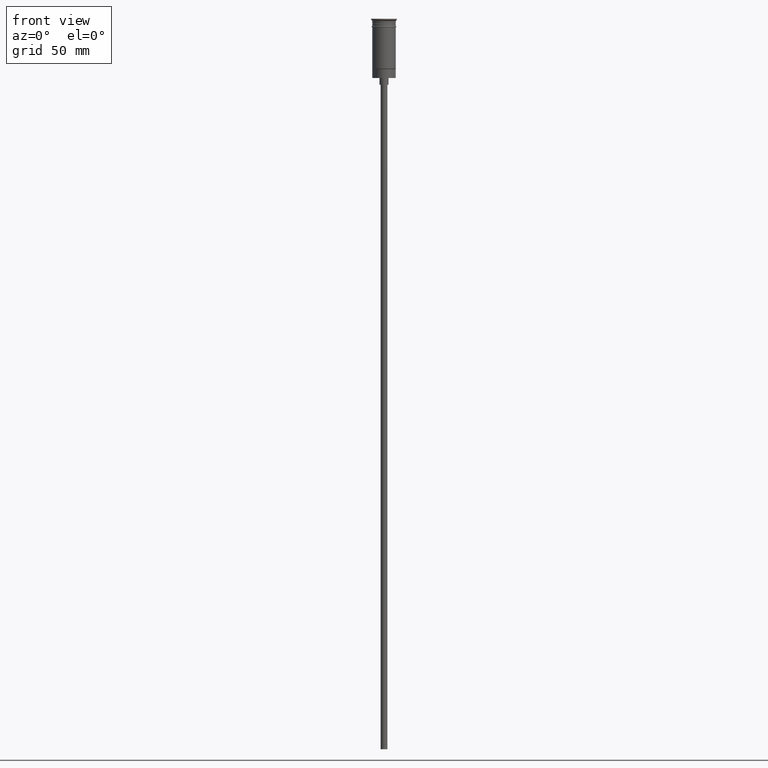
[diagram: clean part render]
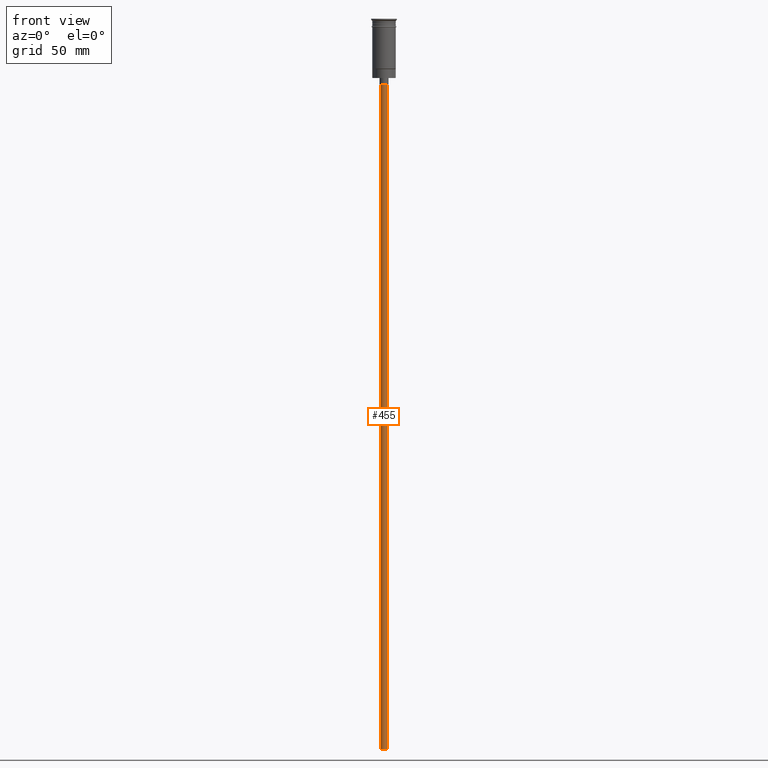
[diagram: same view with one face highlighted and labeled with its STEP entity id]
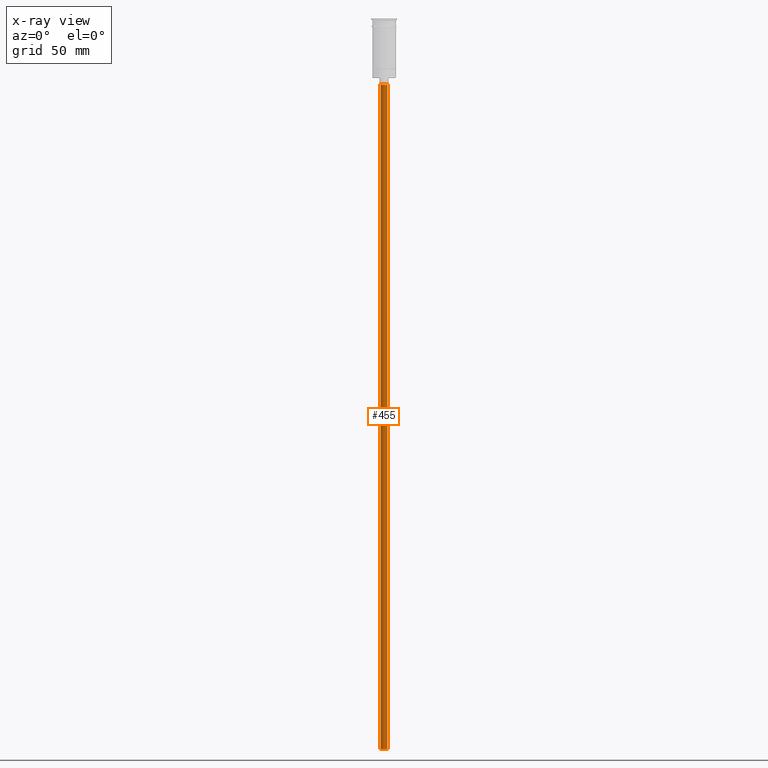
[diagram: x-ray of the same camera — body ghosted, the highlighted face saturated]
A machine part, front view. The second image highlights one B-rep face of the part: STEP entity #455.
The next image is the same camera in x-ray: the body ghosted, the highlighted face saturated — about 0% of this face is hidden behind the body in this view.
In plain terms, the highlighted cylindrical surface (edge-blend (fillet) strip) has radius 1.5 mm, axis along (-0, -0, 1).
Its self-contained STEP definition (entity closure, byte-faithful):
#4 = DIRECTION ( 'NONE',  ( 1.000000000000000000, 0.000000000000000000, 0.000000000000000000 ) ) ;
#87 = DIRECTION ( 'NONE',  ( -0.000000000000000000, -0.000000000000000000, 1.000000000000000000 ) ) ;
#270 = DIRECTION ( 'NONE',  ( 0.000000000000000000, 0.000000000000000000, -1.000000000000000000 ) ) ;
#455 = ADVANCED_FACE ( 'NONE', ( #630 ), #624, .T. ) ;
#482 = EDGE_CURVE ( 'NONE', #1275, #985, #486, .T. ) ;
#486 = LINE ( 'NONE', #984, #1056 ) ;
#558 = DIRECTION ( 'NONE',  ( -1.000000000000000000, 0.000000000000000000, 0.000000000000000000 ) ) ;
#609 = DIRECTION ( 'NONE',  ( -0.000000000000000000, -0.000000000000000000, 1.000000000000000000 ) ) ;
#624 = CYLINDRICAL_SURFACE ( 'NONE', #1311, 1.500000000000000222 ) ;
#630 = FACE_OUTER_BOUND ( 'NONE', #711, .T. ) ;
#642 = AXIS2_PLACEMENT_3D ( 'NONE', #1060, #712, #558 ) ;
#668 = AXIS2_PLACEMENT_3D ( 'NONE', #1466, #270, #1343 ) ;
#703 = CARTESIAN_POINT ( 'NONE',  ( -1.500000000000000222, 1.836970198721030181E-16, -326.5000000000000000 ) ) ;
#711 = EDGE_LOOP ( 'NONE', ( #1378, #1312, #893, #1385 ) ) ;
#712 = DIRECTION ( 'NONE',  ( 0.000000000000000000, 0.000000000000000000, -1.000000000000000000 ) ) ;
#814 = CARTESIAN_POINT ( 'NONE',  ( 1.500000000000000222, 0.000000000000000000, -29.50000000000000000 ) ) ;
#867 = EDGE_CURVE ( 'NONE', #985, #1335, #1473, .T. ) ;
#893 = ORIENTED_EDGE ( 'NONE', *, *, #482, .T. ) ;
#961 = EDGE_CURVE ( 'NONE', #1245, #1335, #1457, .T. ) ;
#984 = CARTESIAN_POINT ( 'NONE',  ( 1.500000000000000222, 0.000000000000000000, -326.5000000000000000 ) ) ;
#985 = VERTEX_POINT ( 'NONE', #814 ) ;
#995 = EDGE_CURVE ( 'NONE', #1275, #1245, #1340, .T. ) ;
#1056 = VECTOR ( 'NONE', #1477, 1000.000000000000000 ) ;
#1060 = CARTESIAN_POINT ( 'NONE',  ( 0.000000000000000000, 0.000000000000000000, -326.5000000000000000 ) ) ;
#1112 = CARTESIAN_POINT ( 'NONE',  ( 0.000000000000000000, 0.000000000000000000, -326.5000000000000000 ) ) ;
#1190 = CARTESIAN_POINT ( 'NONE',  ( -1.500000000000000222, 1.836970198721030181E-16, -29.50000000000000000 ) ) ;
#1245 = VERTEX_POINT ( 'NONE', #1408 ) ;
#1275 = VERTEX_POINT ( 'NONE', #1539 ) ;
#1311 = AXIS2_PLACEMENT_3D ( 'NONE', #1112, #609, #4 ) ;
#1312 = ORIENTED_EDGE ( 'NONE', *, *, #995, .F. ) ;
#1335 = VERTEX_POINT ( 'NONE', #1190 ) ;
#1340 = CIRCLE ( 'NONE', #642, 1.500000000000000222 ) ;
#1343 = DIRECTION ( 'NONE',  ( -1.000000000000000000, 0.000000000000000000, 0.000000000000000000 ) ) ;
#1378 = ORIENTED_EDGE ( 'NONE', *, *, #961, .F. ) ;
#1385 = ORIENTED_EDGE ( 'NONE', *, *, #867, .T. ) ;
#1408 = CARTESIAN_POINT ( 'NONE',  ( -1.500000000000000222, 1.836970198721030181E-16, -326.5000000000000000 ) ) ;
#1457 = LINE ( 'NONE', #703, #1526 ) ;
#1466 = CARTESIAN_POINT ( 'NONE',  ( 0.000000000000000000, 0.000000000000000000, -29.50000000000000000 ) ) ;
#1473 = CIRCLE ( 'NONE', #668, 1.500000000000000222 ) ;
#1477 = DIRECTION ( 'NONE',  ( -0.000000000000000000, -0.000000000000000000, 1.000000000000000000 ) ) ;
#1526 = VECTOR ( 'NONE', #87, 1000.000000000000000 ) ;
#1539 = CARTESIAN_POINT ( 'NONE',  ( 1.500000000000000222, 0.000000000000000000, -326.5000000000000000 ) ) ;